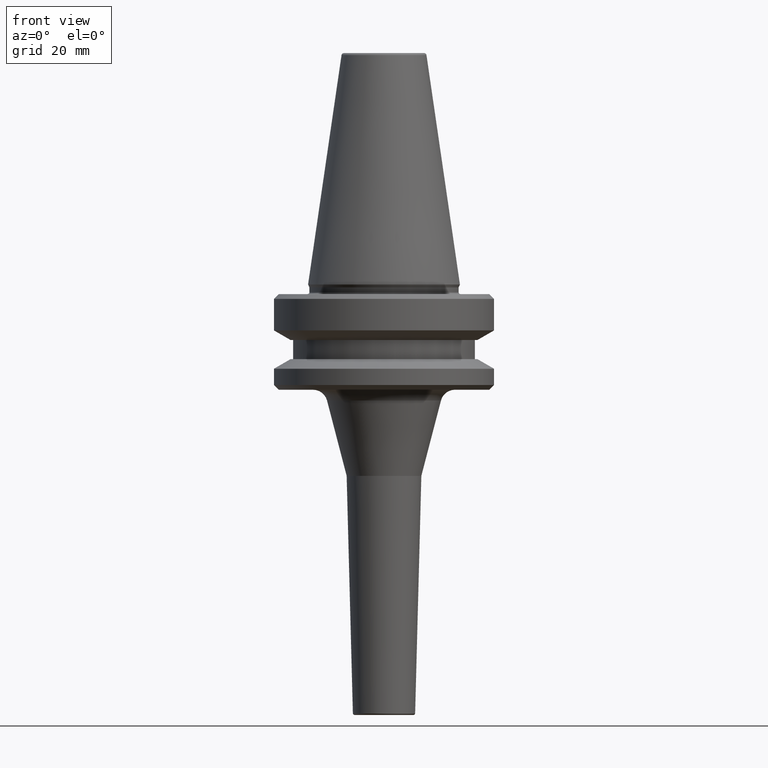
[diagram: clean part render]
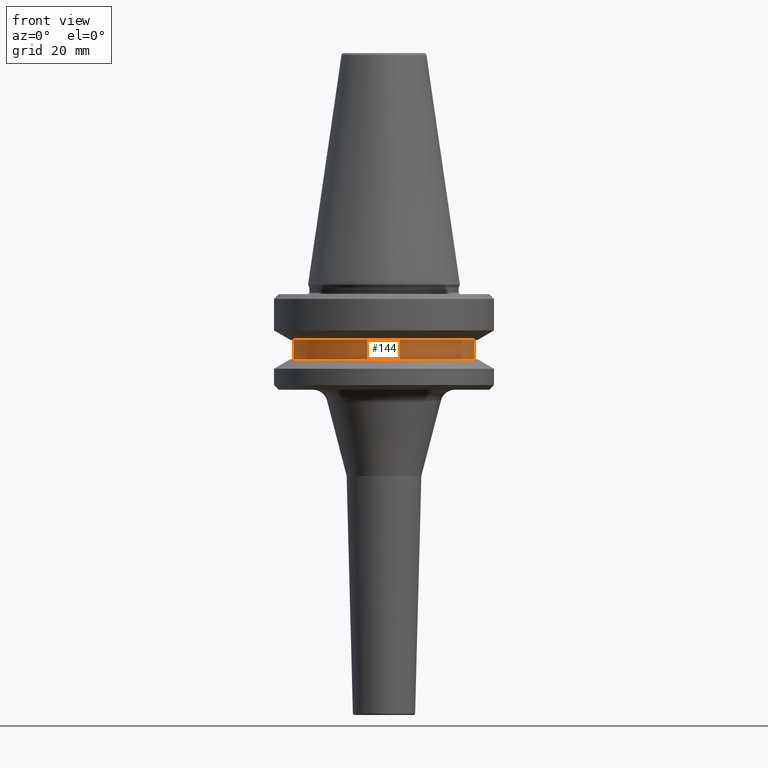
[diagram: same view with one face highlighted and labeled with its STEP entity id]
A machine part, front view. The second image highlights one B-rep face of the part: STEP entity #144.
In plain terms, the highlighted cylindrical surface (partial cylindrical patch) has radius 19 mm, axis along (-0, -0, 1).
Its self-contained STEP definition (entity closure, byte-faithful):
#44 = ORIENTED_EDGE ( 'NONE', *, *, #234, .F. ) ;
#95 = DIRECTION ( 'NONE',  ( 1.000000000000000000, 0.0000000000000000000, 0.0000000000000000000 ) ) ;
#115 = ORIENTED_EDGE ( 'NONE', *, *, #1048, .T. ) ;
#144 = ADVANCED_FACE ( 'NONE', ( #563 ), #985, .T. ) ;
#164 = DIRECTION ( 'NONE',  ( -0.0000000000000000000, -0.0000000000000000000, 1.000000000000000000 ) ) ;
#176 = CARTESIAN_POINT ( 'NONE',  ( -19.00000000000023800, 2.326828918380000200E-015, 105.6755792788445500 ) ) ;
#229 = CARTESIAN_POINT ( 'NONE',  ( 19.00000000000023800, 0.0000000000000000000, -11.59999999999961100 ) ) ;
#234 = EDGE_CURVE ( 'NONE', #1003, #537, #936, .T. ) ;
#257 = CARTESIAN_POINT ( 'NONE',  ( 0.0000000000000000000, 0.0000000000000000000, -15.60000000000005800 ) ) ;
#307 = EDGE_CURVE ( 'NONE', #537, #665, #1023, .T. ) ;
#312 = VERTEX_POINT ( 'NONE', #414 ) ;
#313 = EDGE_LOOP ( 'NONE', ( #44, #525, #115, #949 ) ) ;
#319 = DIRECTION ( 'NONE',  ( 1.000000000000000000, 0.0000000000000000000, 0.0000000000000000000 ) ) ;
#335 = DIRECTION ( 'NONE',  ( -0.0000000000000000000, -0.0000000000000000000, 1.000000000000000000 ) ) ;
#346 = LINE ( 'NONE', #604, #718 ) ;
#399 = DIRECTION ( 'NONE',  ( 1.000000000000000000, 0.0000000000000000000, 0.0000000000000000000 ) ) ;
#409 = DIRECTION ( 'NONE',  ( -0.0000000000000000000, -0.0000000000000000000, 1.000000000000000000 ) ) ;
#414 = CARTESIAN_POINT ( 'NONE',  ( 19.00000000000023800, 0.0000000000000000000, -15.60000000000005800 ) ) ;
#474 = EDGE_CURVE ( 'NONE', #1003, #312, #862, .T. ) ;
#525 = ORIENTED_EDGE ( 'NONE', *, *, #474, .T. ) ;
#537 = VERTEX_POINT ( 'NONE', #989 ) ;
#563 = FACE_OUTER_BOUND ( 'NONE', #313, .T. ) ;
#604 = CARTESIAN_POINT ( 'NONE',  ( 19.00000000000023800, 0.0000000000000000000, 105.6755792788445500 ) ) ;
#651 = DIRECTION ( 'NONE',  ( -0.0000000000000000000, -0.0000000000000000000, 1.000000000000000000 ) ) ;
#665 = VERTEX_POINT ( 'NONE', #229 ) ;
#678 = DIRECTION ( 'NONE',  ( -0.0000000000000000000, -0.0000000000000000000, 1.000000000000000000 ) ) ;
#718 = VECTOR ( 'NONE', #678, 1000.000000000000000 ) ;
#726 = CARTESIAN_POINT ( 'NONE',  ( 0.0000000000000000000, 0.0000000000000000000, 105.6755792788445500 ) ) ;
#773 = AXIS2_PLACEMENT_3D ( 'NONE', #257, #409, #319 ) ;
#824 = VECTOR ( 'NONE', #335, 1000.000000000000000 ) ;
#830 = CARTESIAN_POINT ( 'NONE',  ( -19.00000000000023800, 2.326828918380000200E-015, -15.60000000000005800 ) ) ;
#862 = CIRCLE ( 'NONE', #773, 19.00000000000023800 ) ;
#897 = AXIS2_PLACEMENT_3D ( 'NONE', #726, #651, #95 ) ;
#936 = LINE ( 'NONE', #176, #824 ) ;
#949 = ORIENTED_EDGE ( 'NONE', *, *, #307, .F. ) ;
#967 = CARTESIAN_POINT ( 'NONE',  ( 0.0000000000000000000, 0.0000000000000000000, -11.59999999999961100 ) ) ;
#980 = AXIS2_PLACEMENT_3D ( 'NONE', #967, #164, #399 ) ;
#985 = CYLINDRICAL_SURFACE ( 'NONE', #897, 19.00000000000023800 ) ;
#989 = CARTESIAN_POINT ( 'NONE',  ( -19.00000000000023800, 2.326828918380000200E-015, -11.59999999999961100 ) ) ;
#1003 = VERTEX_POINT ( 'NONE', #830 ) ;
#1023 = CIRCLE ( 'NONE', #980, 19.00000000000023800 ) ;
#1048 = EDGE_CURVE ( 'NONE', #312, #665, #346, .T. ) ;